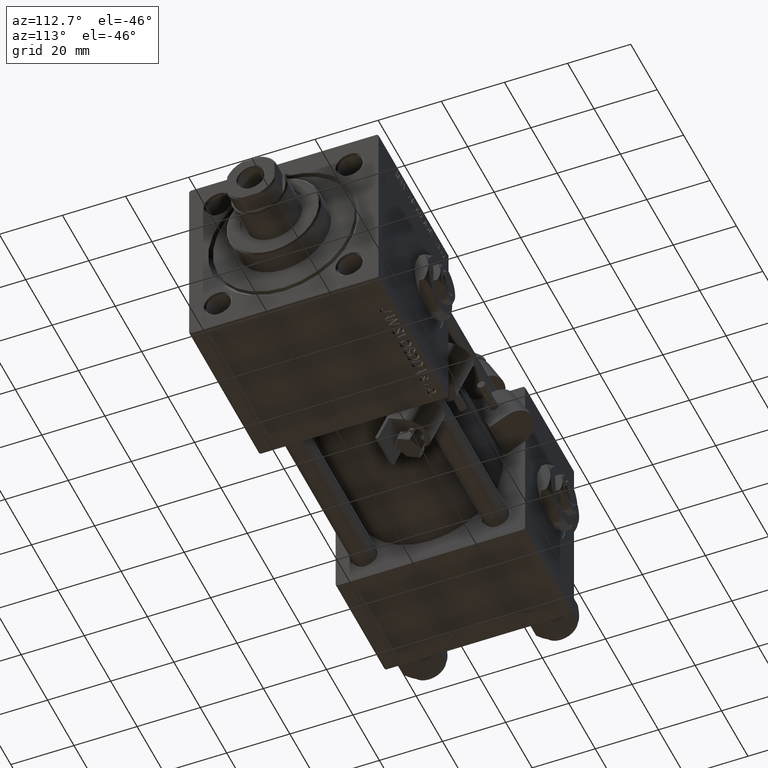
[diagram: clean part render]
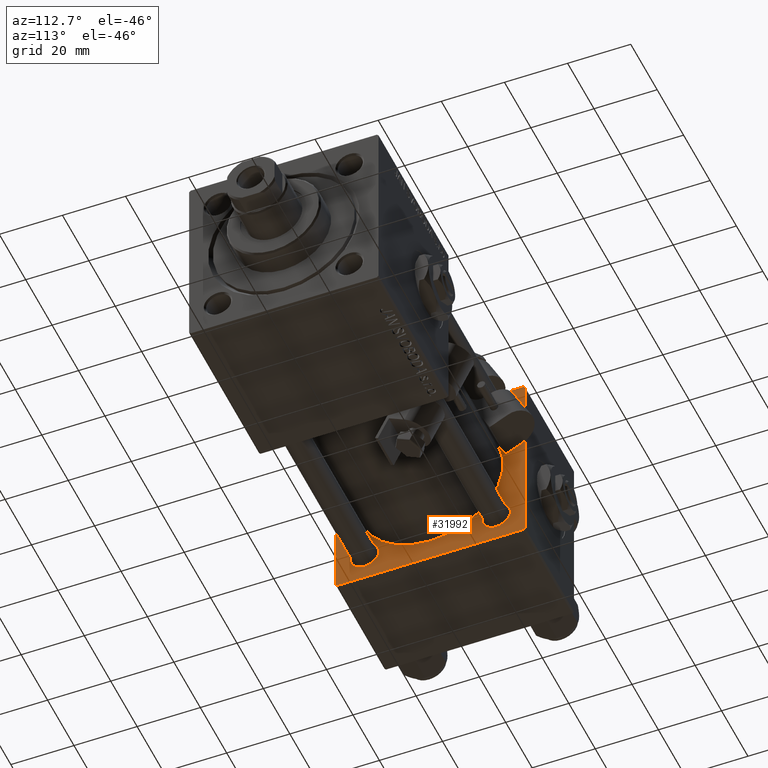
[diagram: same view with one face highlighted and labeled with its STEP entity id]
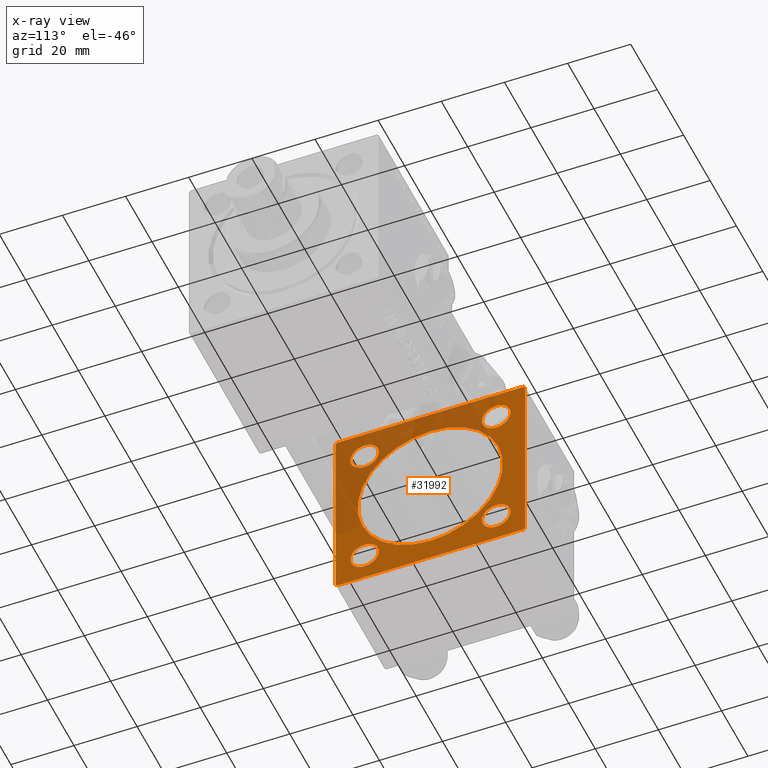
[diagram: x-ray of the same camera — body ghosted, the highlighted face saturated]
A machine part, auxiliary view. The second image highlights one B-rep face of the part: STEP entity #31992.
The next image is the same camera in x-ray: the body ghosted, the highlighted face saturated — about 37% of this face is hidden behind the body in this view.
In plain terms, the highlighted planar face has unit normal (-1, 0, 0).
Its self-contained STEP definition (entity closure, byte-faithful):
#180 = DIRECTION ( 'NONE',  ( 0.000000000000000000, 0.000000000000000000, 1.000000000000000000 ) ) ;
#233 = LINE ( 'NONE', #17221, #8834 ) ;
#527 = CIRCLE ( 'NONE', #18615, 4.499999999999990230 ) ;
#1339 = AXIS2_PLACEMENT_3D ( 'NONE', #6943, #3428, #23395 ) ;
#1385 = VERTEX_POINT ( 'NONE', #40295 ) ;
#1650 = EDGE_LOOP ( 'NONE', ( #40084, #47373 ) ) ;
#1735 = CARTESIAN_POINT ( 'NONE',  ( 37.00000000000000000, 20.84999999999999787, -25.34999999999999076 ) ) ;
#2081 = DIRECTION ( 'NONE',  ( 0.000000000000000000, 0.000000000000000000, 1.000000000000000000 ) ) ;
#2356 = FACE_BOUND ( 'NONE', #3529, .T. ) ;
#2508 = VERTEX_POINT ( 'NONE', #37829 ) ;
#2756 = CARTESIAN_POINT ( 'NONE',  ( 37.00000000000000000, -20.84999999999999076, 25.34999999999999432 ) ) ;
#2890 = PLANE ( 'NONE',  #1339 ) ;
#3049 = EDGE_CURVE ( 'NONE', #2508, #17865, #45237, .T. ) ;
#3428 = DIRECTION ( 'NONE',  ( -1.000000000000000000, 0.000000000000000000, -0.000000000000000000 ) ) ;
#3519 = DIRECTION ( 'NONE',  ( -1.000000000000000000, 0.000000000000000000, -0.000000000000000000 ) ) ;
#3529 = EDGE_LOOP ( 'NONE', ( #20052, #10394 ) ) ;
#3597 = VECTOR ( 'NONE', #24557, 1000.000000000000000 ) ;
#3750 = DIRECTION ( 'NONE',  ( 0.000000000000000000, 0.000000000000000000, -1.000000000000000000 ) ) ;
#4008 = EDGE_CURVE ( 'NONE', #31854, #29987, #527, .T. ) ;
#4014 = ORIENTED_EDGE ( 'NONE', *, *, #23241, .F. ) ;
#4451 = CARTESIAN_POINT ( 'NONE',  ( 37.00000000000000000, 29.99999999999999289, 30.00000000000000000 ) ) ;
#4533 = DIRECTION ( 'NONE',  ( 0.000000000000000000, 0.7071067811865474617, -0.7071067811865474617 ) ) ;
#4807 = DIRECTION ( 'NONE',  ( -1.000000000000000000, 0.000000000000000000, -0.000000000000000000 ) ) ;
#5357 = AXIS2_PLACEMENT_3D ( 'NONE', #8352, #3519, #37179 ) ;
#6861 = ORIENTED_EDGE ( 'NONE', *, *, #47266, .F. ) ;
#6943 = CARTESIAN_POINT ( 'NONE',  ( 37.00000000000000000, 0.000000000000000000, 0.000000000000000000 ) ) ;
#7178 = ORIENTED_EDGE ( 'NONE', *, *, #12940, .T. ) ;
#8321 = CARTESIAN_POINT ( 'NONE',  ( 37.00000000000000000, -20.84999999999999076, 16.35000000000001208 ) ) ;
#8352 = CARTESIAN_POINT ( 'NONE',  ( 37.00000000000000000, -20.84999999999999076, -20.85000000000000497 ) ) ;
#8413 = ORIENTED_EDGE ( 'NONE', *, *, #18428, .F. ) ;
#8739 = EDGE_CURVE ( 'NONE', #29987, #31854, #38579, .T. ) ;
#8834 = VECTOR ( 'NONE', #25049, 1000.000000000000114 ) ;
#8908 = VECTOR ( 'NONE', #11054, 1000.000000000000000 ) ;
#8936 = ORIENTED_EDGE ( 'NONE', *, *, #29728, .T. ) ;
#9591 = CIRCLE ( 'NONE', #49208, 23.00000000000000000 ) ;
#9961 = EDGE_CURVE ( 'NONE', #11121, #33627, #31637, .T. ) ;
#10394 = ORIENTED_EDGE ( 'NONE', *, *, #12370, .T. ) ;
#11054 = DIRECTION ( 'NONE',  ( 0.000000000000000000, -1.000000000000000000, -1.156482317317871725E-16 ) ) ;
#11121 = VERTEX_POINT ( 'NONE', #1735 ) ;
#11224 = CARTESIAN_POINT ( 'NONE',  ( 37.00000000000000000, 20.84999999999999787, -20.85000000000000142 ) ) ;
#11439 = DIRECTION ( 'NONE',  ( 0.000000000000000000, 0.000000000000000000, 1.000000000000000000 ) ) ;
#11696 = AXIS2_PLACEMENT_3D ( 'NONE', #41727, #4807, #36898 ) ;
#11728 = DIRECTION ( 'NONE',  ( 1.000000000000000000, -0.000000000000000000, 0.000000000000000000 ) ) ;
#11808 = AXIS2_PLACEMENT_3D ( 'NONE', #24720, #45196, #180 ) ;
#11817 = AXIS2_PLACEMENT_3D ( 'NONE', #15546, #36802, #15808 ) ;
#12370 = EDGE_CURVE ( 'NONE', #33627, #11121, #25737, .T. ) ;
#12443 = CARTESIAN_POINT ( 'NONE',  ( 37.00000000000000000, -20.84999999999999076, -16.35000000000001208 ) ) ;
#12531 = EDGE_CURVE ( 'NONE', #24786, #33697, #43775, .T. ) ;
#12624 = LINE ( 'NONE', #17722, #38610 ) ;
#12686 = AXIS2_PLACEMENT_3D ( 'NONE', #11224, #48425, #18768 ) ;
#12828 = ORIENTED_EDGE ( 'NONE', *, *, #23409, .T. ) ;
#12940 = EDGE_CURVE ( 'NONE', #40578, #37871, #12624, .T. ) ;
#13322 = AXIS2_PLACEMENT_3D ( 'NONE', #28436, #11728, #53247 ) ;
#14526 = VERTEX_POINT ( 'NONE', #38596 ) ;
#15045 = DIRECTION ( 'NONE',  ( 0.000000000000000000, 0.000000000000000000, 1.000000000000000000 ) ) ;
#15397 = VERTEX_POINT ( 'NONE', #40616 ) ;
#15546 = CARTESIAN_POINT ( 'NONE',  ( 37.00000000000000000, 20.84999999999999787, 20.85000000000000142 ) ) ;
#15586 = CARTESIAN_POINT ( 'NONE',  ( 37.00000000000000000, -20.84999999999999076, 20.85000000000000497 ) ) ;
#15808 = DIRECTION ( 'NONE',  ( 0.000000000000000000, 0.000000000000000000, 1.000000000000000000 ) ) ;
#16042 = EDGE_CURVE ( 'NONE', #33697, #24786, #37175, .T. ) ;
#17221 = CARTESIAN_POINT ( 'NONE',  ( 37.00000000000000000, -30.00000000000000000, 29.49999999999999289 ) ) ;
#17584 = DIRECTION ( 'NONE',  ( -0.000000000000000000, 0.7071067811865574537, 0.7071067811865376918 ) ) ;
#17722 = CARTESIAN_POINT ( 'NONE',  ( 37.00000000000000000, -29.50000000000001066, -30.00000000000000711 ) ) ;
#17865 = VERTEX_POINT ( 'NONE', #37536 ) ;
#18428 = EDGE_CURVE ( 'NONE', #29312, #28884, #9591, .T. ) ;
#18615 = AXIS2_PLACEMENT_3D ( 'NONE', #15586, #44677, #15045 ) ;
#18768 = DIRECTION ( 'NONE',  ( 0.000000000000000000, 0.000000000000000000, 1.000000000000000000 ) ) ;
#18882 = EDGE_CURVE ( 'NONE', #15397, #40578, #49366, .T. ) ;
#18896 = CARTESIAN_POINT ( 'NONE',  ( 37.00000000000000000, 20.84999999999999787, -16.35000000000001208 ) ) ;
#19344 = EDGE_LOOP ( 'NONE', ( #32860, #51686 ) ) ;
#19516 = VECTOR ( 'NONE', #3750, 1000.000000000000000 ) ;
#20052 = ORIENTED_EDGE ( 'NONE', *, *, #9961, .T. ) ;
#20366 = EDGE_CURVE ( 'NONE', #14526, #15397, #233, .T. ) ;
#20910 = DIRECTION ( 'NONE',  ( 0.000000000000000000, -1.000000000000000000, -1.156482317317871725E-16 ) ) ;
#21573 = CARTESIAN_POINT ( 'NONE',  ( 37.00000000000000000, 29.49999999999999289, 30.00000000000000000 ) ) ;
#22592 = LINE ( 'NONE', #39009, #38172 ) ;
#22768 = CARTESIAN_POINT ( 'NONE',  ( 37.00000000000000000, 2.146024240737012665E-16, -23.00000000000000000 ) ) ;
#23064 = CARTESIAN_POINT ( 'NONE',  ( 37.00000000000000000, 29.99999999999999289, -29.50000000000000000 ) ) ;
#23241 = EDGE_CURVE ( 'NONE', #1385, #37871, #23714, .T. ) ;
#23395 = DIRECTION ( 'NONE',  ( -0.000000000000000000, 0.000000000000000000, 1.000000000000000000 ) ) ;
#23409 = EDGE_CURVE ( 'NONE', #45982, #41034, #22592, .T. ) ;
#23424 = CARTESIAN_POINT ( 'NONE',  ( 37.00000000000000000, -29.50000000000000000, -30.00000000000000711 ) ) ;
#23714 = LINE ( 'NONE', #40134, #8908 ) ;
#23982 = ORIENTED_EDGE ( 'NONE', *, *, #20366, .T. ) ;
#24557 = DIRECTION ( 'NONE',  ( 0.000000000000000000, 0.000000000000000000, -1.000000000000000000 ) ) ;
#24720 = CARTESIAN_POINT ( 'NONE',  ( 37.00000000000000000, -20.84999999999999076, 20.85000000000000497 ) ) ;
#24786 = VERTEX_POINT ( 'NONE', #12443 ) ;
#25049 = DIRECTION ( 'NONE',  ( -0.000000000000000000, -0.7071067811865474617, -0.7071067811865474617 ) ) ;
#25161 = CARTESIAN_POINT ( 'NONE',  ( 37.00000000000000000, 29.99999999999999289, 29.50000000000000000 ) ) ;
#25737 = CIRCLE ( 'NONE', #27438, 4.499999999999990230 ) ;
#26622 = EDGE_CURVE ( 'NONE', #28884, #29312, #36553, .T. ) ;
#27070 = ORIENTED_EDGE ( 'NONE', *, *, #28637, .T. ) ;
#27438 = AXIS2_PLACEMENT_3D ( 'NONE', #39739, #35973, #11439 ) ;
#28436 = CARTESIAN_POINT ( 'NONE',  ( 37.00000000000000000, -2.602085213965210642E-15, 0.000000000000000000 ) ) ;
#28637 = EDGE_CURVE ( 'NONE', #41034, #14526, #50286, .T. ) ;
#28884 = VERTEX_POINT ( 'NONE', #22768 ) ;
#28925 = VECTOR ( 'NONE', #17584, 999.9999999999998863 ) ;
#29312 = VERTEX_POINT ( 'NONE', #52015 ) ;
#29728 = EDGE_CURVE ( 'NONE', #1385, #32185, #50489, .T. ) ;
#29987 = VERTEX_POINT ( 'NONE', #2756 ) ;
#30535 = EDGE_LOOP ( 'NONE', ( #33228, #31785 ) ) ;
#31637 = CIRCLE ( 'NONE', #12686, 4.499999999999990230 ) ;
#31785 = ORIENTED_EDGE ( 'NONE', *, *, #3049, .T. ) ;
#31854 = VERTEX_POINT ( 'NONE', #8321 ) ;
#31992 = ADVANCED_FACE ( 'NONE', ( #43862, #2356, #44388, #39811, #36048, #39278 ), #2890, .F. ) ;
#32185 = VERTEX_POINT ( 'NONE', #23064 ) ;
#32451 = DIRECTION ( 'NONE',  ( -1.000000000000000000, 0.000000000000000000, -0.000000000000000000 ) ) ;
#32860 = ORIENTED_EDGE ( 'NONE', *, *, #4008, .T. ) ;
#33176 = CARTESIAN_POINT ( 'NONE',  ( 37.00000000000000000, -30.00000000000000000, 29.99999999999999289 ) ) ;
#33228 = ORIENTED_EDGE ( 'NONE', *, *, #48461, .T. ) ;
#33627 = VERTEX_POINT ( 'NONE', #18896 ) ;
#33697 = VERTEX_POINT ( 'NONE', #53109 ) ;
#33915 = DIRECTION ( 'NONE',  ( 0.000000000000000000, -0.7071067811865474617, 0.7071067811865474617 ) ) ;
#35906 = CIRCLE ( 'NONE', #11817, 4.499999999999990230 ) ;
#35973 = DIRECTION ( 'NONE',  ( -1.000000000000000000, 0.000000000000000000, -0.000000000000000000 ) ) ;
#36048 = FACE_BOUND ( 'NONE', #41586, .T. ) ;
#36330 = CARTESIAN_POINT ( 'NONE',  ( 37.00000000000000000, -30.00000000000000000, -29.50000000000001776 ) ) ;
#36553 = CIRCLE ( 'NONE', #13322, 23.00000000000000000 ) ;
#36802 = DIRECTION ( 'NONE',  ( -1.000000000000000000, 0.000000000000000000, -0.000000000000000000 ) ) ;
#36898 = DIRECTION ( 'NONE',  ( 0.000000000000000000, 0.000000000000000000, 1.000000000000000000 ) ) ;
#37175 = CIRCLE ( 'NONE', #5357, 4.499999999999990230 ) ;
#37179 = DIRECTION ( 'NONE',  ( 0.000000000000000000, 0.000000000000000000, 1.000000000000000000 ) ) ;
#37532 = ORIENTED_EDGE ( 'NONE', *, *, #26622, .F. ) ;
#37536 = CARTESIAN_POINT ( 'NONE',  ( 37.00000000000000000, 20.84999999999999787, 16.35000000000001208 ) ) ;
#37829 = CARTESIAN_POINT ( 'NONE',  ( 37.00000000000000000, 20.84999999999999787, 25.34999999999999076 ) ) ;
#37871 = VERTEX_POINT ( 'NONE', #23424 ) ;
#38172 = VECTOR ( 'NONE', #33915, 1000.000000000000114 ) ;
#38579 = CIRCLE ( 'NONE', #11808, 4.499999999999990230 ) ;
#38596 = CARTESIAN_POINT ( 'NONE',  ( 37.00000000000000000, -29.49999999999998579, 29.99999999999999289 ) ) ;
#38610 = VECTOR ( 'NONE', #4533, 1000.000000000000114 ) ;
#39009 = CARTESIAN_POINT ( 'NONE',  ( 37.00000000000000000, 29.49999999999999289, 30.00000000000000000 ) ) ;
#39278 = FACE_OUTER_BOUND ( 'NONE', #51871, .T. ) ;
#39508 = AXIS2_PLACEMENT_3D ( 'NONE', #40528, #32451, #48908 ) ;
#39739 = CARTESIAN_POINT ( 'NONE',  ( 37.00000000000000000, 20.84999999999999787, -20.85000000000000142 ) ) ;
#39811 = FACE_BOUND ( 'NONE', #30535, .T. ) ;
#39879 = CARTESIAN_POINT ( 'NONE',  ( 37.00000000000000000, 29.99999999999999289, 30.00000000000000000 ) ) ;
#40084 = ORIENTED_EDGE ( 'NONE', *, *, #16042, .T. ) ;
#40134 = CARTESIAN_POINT ( 'NONE',  ( 37.00000000000000000, 29.99999999999999289, -30.00000000000000000 ) ) ;
#40295 = CARTESIAN_POINT ( 'NONE',  ( 37.00000000000000000, 29.49999999999997868, -30.00000000000000000 ) ) ;
#40528 = CARTESIAN_POINT ( 'NONE',  ( 37.00000000000000000, -20.84999999999999076, -20.85000000000000497 ) ) ;
#40578 = VERTEX_POINT ( 'NONE', #36330 ) ;
#40616 = CARTESIAN_POINT ( 'NONE',  ( 37.00000000000000000, -30.00000000000000000, 29.49999999999999289 ) ) ;
#41034 = VERTEX_POINT ( 'NONE', #21573 ) ;
#41586 = EDGE_LOOP ( 'NONE', ( #8413, #37532 ) ) ;
#41727 = CARTESIAN_POINT ( 'NONE',  ( 37.00000000000000000, 20.84999999999999787, 20.85000000000000142 ) ) ;
#43775 = CIRCLE ( 'NONE', #39508, 4.499999999999990230 ) ;
#43862 = FACE_BOUND ( 'NONE', #1650, .T. ) ;
#44388 = FACE_BOUND ( 'NONE', #19344, .T. ) ;
#44460 = LINE ( 'NONE', #39879, #19516 ) ;
#44677 = DIRECTION ( 'NONE',  ( -1.000000000000000000, 0.000000000000000000, -0.000000000000000000 ) ) ;
#45196 = DIRECTION ( 'NONE',  ( -1.000000000000000000, 0.000000000000000000, -0.000000000000000000 ) ) ;
#45237 = CIRCLE ( 'NONE', #11696, 4.499999999999990230 ) ;
#45466 = ORIENTED_EDGE ( 'NONE', *, *, #18882, .T. ) ;
#45982 = VERTEX_POINT ( 'NONE', #25161 ) ;
#47266 = EDGE_CURVE ( 'NONE', #45982, #32185, #44460, .T. ) ;
#47373 = ORIENTED_EDGE ( 'NONE', *, *, #12531, .T. ) ;
#48425 = DIRECTION ( 'NONE',  ( -1.000000000000000000, 0.000000000000000000, -0.000000000000000000 ) ) ;
#48461 = EDGE_CURVE ( 'NONE', #17865, #2508, #35906, .T. ) ;
#48908 = DIRECTION ( 'NONE',  ( 0.000000000000000000, 0.000000000000000000, 1.000000000000000000 ) ) ;
#48971 = CARTESIAN_POINT ( 'NONE',  ( 37.00000000000000000, 29.99999999999999289, -29.50000000000000000 ) ) ;
#49208 = AXIS2_PLACEMENT_3D ( 'NONE', #50363, #50895, #2081 ) ;
#49366 = LINE ( 'NONE', #33176, #3597 ) ;
#49573 = VECTOR ( 'NONE', #20910, 1000.000000000000000 ) ;
#50286 = LINE ( 'NONE', #4451, #49573 ) ;
#50363 = CARTESIAN_POINT ( 'NONE',  ( 37.00000000000000000, -2.602085213965210642E-15, 0.000000000000000000 ) ) ;
#50489 = LINE ( 'NONE', #48971, #28925 ) ;
#50895 = DIRECTION ( 'NONE',  ( 1.000000000000000000, -0.000000000000000000, 0.000000000000000000 ) ) ;
#51686 = ORIENTED_EDGE ( 'NONE', *, *, #8739, .T. ) ;
#51871 = EDGE_LOOP ( 'NONE', ( #4014, #8936, #6861, #12828, #27070, #23982, #45466, #7178 ) ) ;
#52015 = CARTESIAN_POINT ( 'NONE',  ( 37.00000000000000000, -2.602085213965210642E-15, 23.00000000000000000 ) ) ;
#53109 = CARTESIAN_POINT ( 'NONE',  ( 37.00000000000000000, -20.84999999999999076, -25.34999999999999432 ) ) ;
#53247 = DIRECTION ( 'NONE',  ( 0.000000000000000000, 0.000000000000000000, 1.000000000000000000 ) ) ;